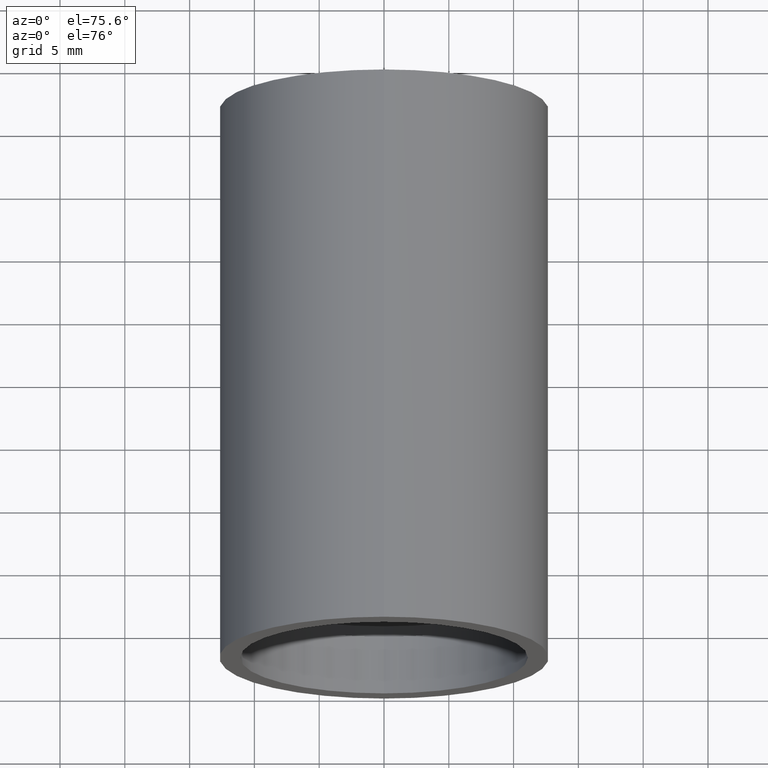
[diagram: clean part render]
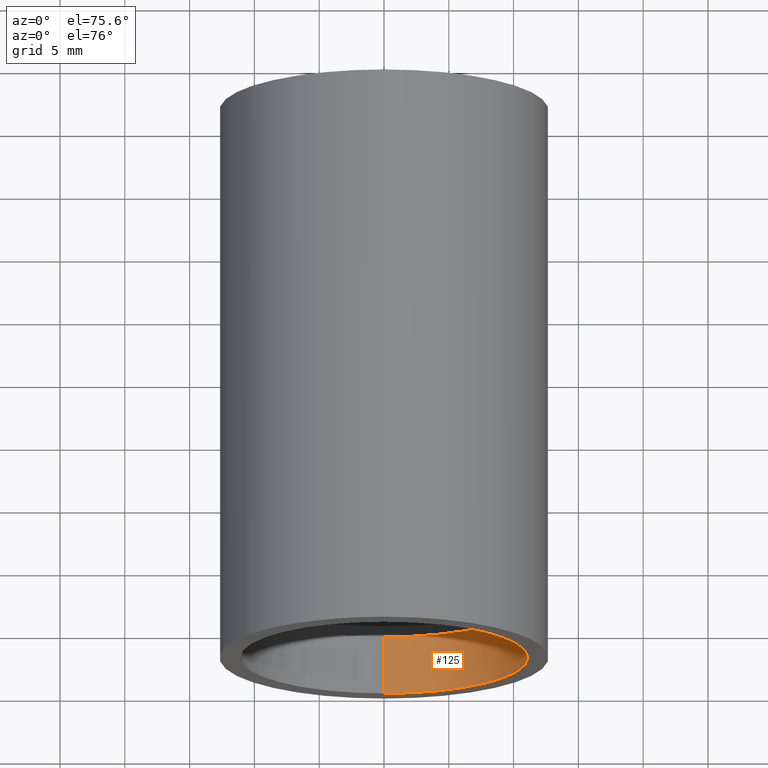
[diagram: same view with one face highlighted and labeled with its STEP entity id]
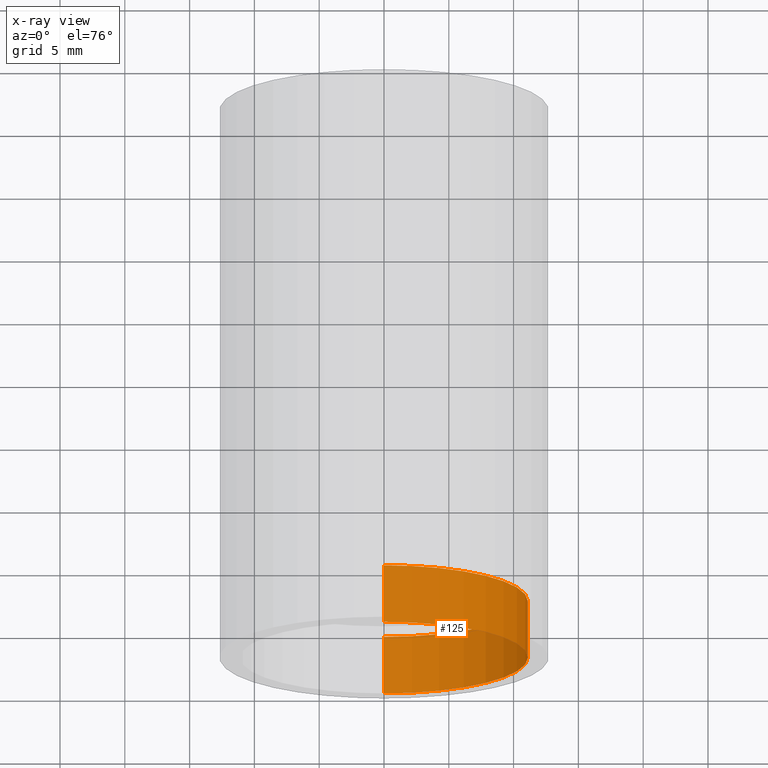
[diagram: x-ray of the same camera — body ghosted, the highlighted face saturated]
A machine part, auxiliary view. The second image highlights one B-rep face of the part: STEP entity #125.
The next image is the same camera in x-ray: the body ghosted, the highlighted face saturated — about 0% of this face is hidden behind the body in this view.
In plain terms, the highlighted cylindrical surface (partial cylindrical patch) has radius 11.1 mm, axis along (-0, 1, -0).
Its self-contained STEP definition (entity closure, byte-faithful):
#8 = VERTEX_POINT ( 'NONE', #395 ) ;
#9 = DIRECTION ( 'NONE',  ( -0.0000000000000000000, 1.000000000000000000, -0.0000000000000000000 ) ) ;
#14 = CARTESIAN_POINT ( 'NONE',  ( 0.0000000000000000000, -2.775557561562891400E-014, 0.0000000000000000000 ) ) ;
#39 = VECTOR ( 'NONE', #9, 1000.000000000000000 ) ;
#74 = EDGE_CURVE ( 'NONE', #583, #426, #252, .T. ) ;
#79 = VERTEX_POINT ( 'NONE', #140 ) ;
#81 = CIRCLE ( 'NONE', #104, 11.10000000000001900 ) ;
#104 = AXIS2_PLACEMENT_3D ( 'NONE', #346, #248, #138 ) ;
#125 = ADVANCED_FACE ( 'NONE', ( #152 ), #472, .F. ) ;
#132 = DIRECTION ( 'NONE',  ( 0.0000000000000000000, 0.0000000000000000000, 1.000000000000000000 ) ) ;
#138 = DIRECTION ( 'NONE',  ( 0.0000000000000000000, 0.0000000000000000000, 1.000000000000000000 ) ) ;
#140 = CARTESIAN_POINT ( 'NONE',  ( 0.0000000000000000000, -2.775557561562891400E-014, 11.10000000000002300 ) ) ;
#152 = FACE_OUTER_BOUND ( 'NONE', #215, .T. ) ;
#161 = VECTOR ( 'NONE', #193, 1000.000000000000000 ) ;
#189 = CARTESIAN_POINT ( 'NONE',  ( 1.359357947053564900E-015, -2.775557561562891400E-014, -11.10000000000002300 ) ) ;
#192 = LINE ( 'NONE', #401, #161 ) ;
#193 = DIRECTION ( 'NONE',  ( -0.0000000000000000000, 1.000000000000000000, -0.0000000000000000000 ) ) ;
#215 = EDGE_LOOP ( 'NONE', ( #288, #217, #463, #324 ) ) ;
#217 = ORIENTED_EDGE ( 'NONE', *, *, #581, .F. ) ;
#227 = CARTESIAN_POINT ( 'NONE',  ( 1.359357947053564500E-015, 4.499999999999976000, -11.10000000000001900 ) ) ;
#236 = AXIS2_PLACEMENT_3D ( 'NONE', #14, #543, #132 ) ;
#248 = DIRECTION ( 'NONE',  ( -0.0000000000000000000, 1.000000000000000000, -0.0000000000000000000 ) ) ;
#252 = LINE ( 'NONE', #400, #39 ) ;
#263 = CARTESIAN_POINT ( 'NONE',  ( 0.0000000000000000000, 161.3761669434274500, 0.0000000000000000000 ) ) ;
#288 = ORIENTED_EDGE ( 'NONE', *, *, #74, .F. ) ;
#318 = DIRECTION ( 'NONE',  ( -0.0000000000000000000, 1.000000000000000000, -0.0000000000000000000 ) ) ;
#324 = ORIENTED_EDGE ( 'NONE', *, *, #336, .T. ) ;
#336 = EDGE_CURVE ( 'NONE', #8, #426, #81, .T. ) ;
#346 = CARTESIAN_POINT ( 'NONE',  ( 0.0000000000000000000, 4.499999999999976000, 0.0000000000000000000 ) ) ;
#375 = EDGE_CURVE ( 'NONE', #79, #8, #192, .T. ) ;
#395 = CARTESIAN_POINT ( 'NONE',  ( 0.0000000000000000000, 4.499999999999976000, 11.10000000000001900 ) ) ;
#400 = CARTESIAN_POINT ( 'NONE',  ( 1.359357947053564500E-015, 161.3761669434274500, -11.10000000000002100 ) ) ;
#401 = CARTESIAN_POINT ( 'NONE',  ( 0.0000000000000000000, 161.3761669434274500, 11.10000000000002100 ) ) ;
#426 = VERTEX_POINT ( 'NONE', #227 ) ;
#463 = ORIENTED_EDGE ( 'NONE', *, *, #375, .T. ) ;
#469 = DIRECTION ( 'NONE',  ( 0.0000000000000000000, 0.0000000000000000000, 1.000000000000000000 ) ) ;
#472 = CYLINDRICAL_SURFACE ( 'NONE', #569, 11.10000000000002100 ) ;
#543 = DIRECTION ( 'NONE',  ( -0.0000000000000000000, 1.000000000000000000, -0.0000000000000000000 ) ) ;
#569 = AXIS2_PLACEMENT_3D ( 'NONE', #263, #318, #469 ) ;
#581 = EDGE_CURVE ( 'NONE', #79, #583, #584, .T. ) ;
#583 = VERTEX_POINT ( 'NONE', #189 ) ;
#584 = CIRCLE ( 'NONE', #236, 11.10000000000002300 ) ;